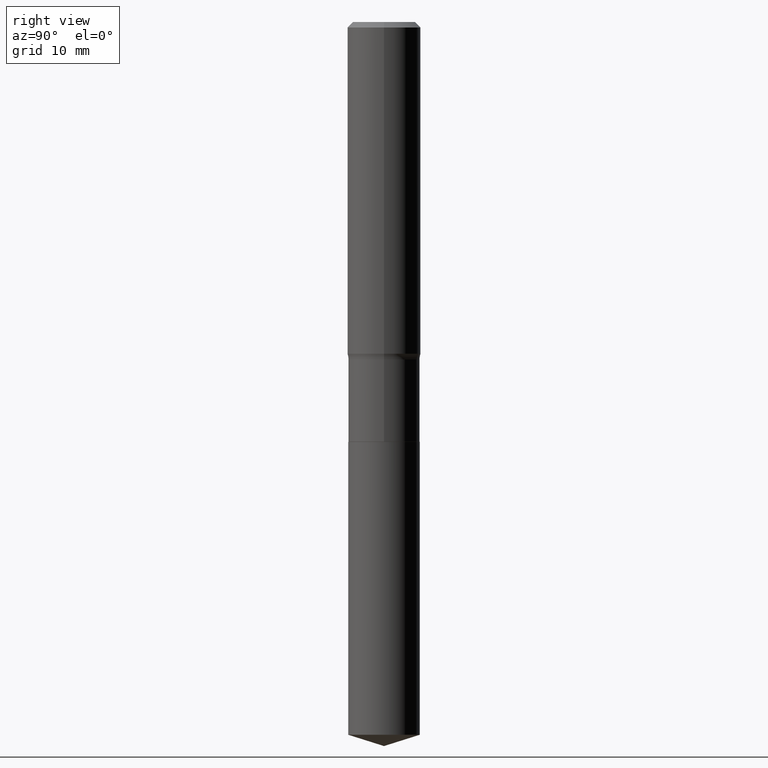
[diagram: clean part render]
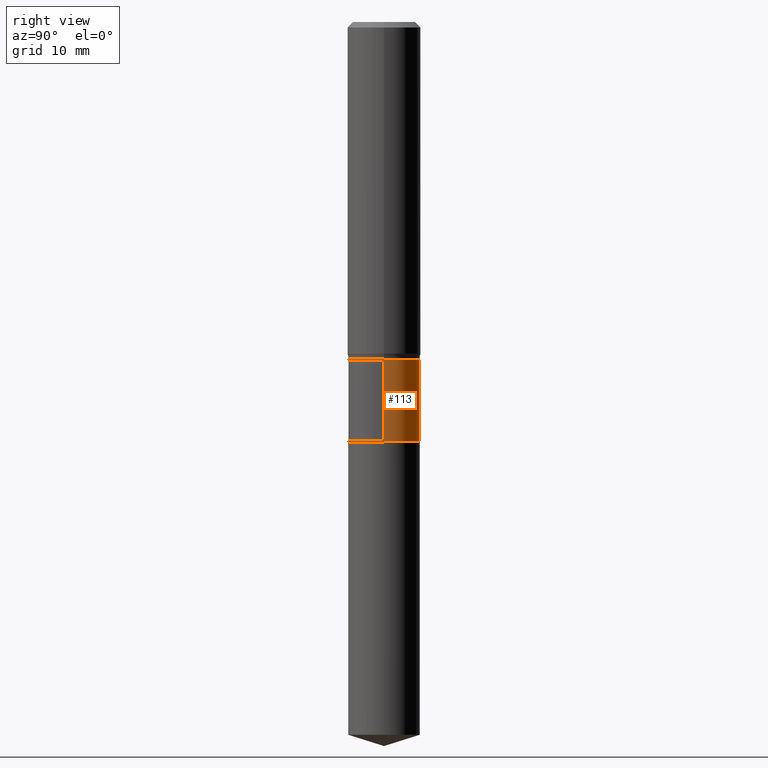
[diagram: same view with one face highlighted and labeled with its STEP entity id]
A machine part, right view. The second image highlights one B-rep face of the part: STEP entity #113.
In plain terms, the highlighted cylindrical surface (edge-blend (fillet) strip) has radius 3.9002 mm, axis along (-0, 0, 1).
Its self-contained STEP definition (entity closure, byte-faithful):
#10 = DIRECTION ( 'NONE',  ( 1.000000000000000000, -6.982962677686269077E-15, 0.000000000000000000 ) ) ;
#18 = EDGE_CURVE ( 'NONE', #383, #460, #448, .T. ) ;
#66 = VERTEX_POINT ( 'NONE', #290 ) ;
#71 = LINE ( 'NONE', #365, #364 ) ;
#73 = DIRECTION ( 'NONE',  ( 1.000000000000000000, -6.982962677686263555E-15, 0.000000000000000000 ) ) ;
#113 = ADVANCED_FACE ( 'NONE', ( #470 ), #118, .T. ) ;
#118 = CYLINDRICAL_SURFACE ( 'NONE', #461, 0.1535499999999999643 ) ;
#127 = CARTESIAN_POINT ( 'NONE',  ( -0.1535499999999999643, -4.586983156534031207E-15, -1.449899999999999967 ) ) ;
#131 = CARTESIAN_POINT ( 'NONE',  ( 0.000000000000000000, 0.000000000000000000, 0.000000000000000000 ) ) ;
#132 = EDGE_CURVE ( 'NONE', #66, #149, #211, .T. ) ;
#133 = AXIS2_PLACEMENT_3D ( 'NONE', #339, #304, #73 ) ;
#149 = VERTEX_POINT ( 'NONE', #324 ) ;
#156 = CARTESIAN_POINT ( 'NONE',  ( 4.408202070029327321E-29, -6.293744261398653946E-15, -1.802599999999999980 ) ) ;
#157 = AXIS2_PLACEMENT_3D ( 'NONE', #156, #215, #10 ) ;
#169 = CARTESIAN_POINT ( 'NONE',  ( 0.1535499999999999643, -6.134532712347401777E-15, -1.449899999999999967 ) ) ;
#183 = DIRECTION ( 'NONE',  ( -2.445468806185136877E-29, 3.491481338843145188E-15, 1.000000000000000000 ) ) ;
#209 = EDGE_CURVE ( 'NONE', #149, #460, #71, .T. ) ;
#211 = CIRCLE ( 'NONE', #157, 0.1535499999999999921 ) ;
#215 = DIRECTION ( 'NONE',  ( -2.445468806185136597E-29, 3.491481338843145583E-15, 1.000000000000000000 ) ) ;
#227 = LINE ( 'NONE', #484, #441 ) ;
#232 = DIRECTION ( 'NONE',  ( -2.445468806185136597E-29, 3.491481338843145583E-15, 1.000000000000000000 ) ) ;
#247 = EDGE_CURVE ( 'NONE', #66, #383, #227, .T. ) ;
#256 = ORIENTED_EDGE ( 'NONE', *, *, #132, .T. ) ;
#258 = ORIENTED_EDGE ( 'NONE', *, *, #18, .F. ) ;
#290 = CARTESIAN_POINT ( 'NONE',  ( 0.1535499999999999921, -7.365978180557380092E-15, -1.802599999999999980 ) ) ;
#304 = DIRECTION ( 'NONE',  ( -2.445468806185136597E-29, 3.491481338843145583E-15, 1.000000000000000000 ) ) ;
#324 = CARTESIAN_POINT ( 'NONE',  ( -0.1535500000000000198, -4.586983156534031207E-15, -1.802599999999999980 ) ) ;
#339 = CARTESIAN_POINT ( 'NONE',  ( 3.545685222087829505E-29, -5.062298793188676419E-15, -1.449899999999999967 ) ) ;
#364 = VECTOR ( 'NONE', #183, 39.37007874015748143 ) ;
#365 = CARTESIAN_POINT ( 'NONE',  ( -0.1535499999999999643, 1.091038370759633582E-15, -7.553024831086406471E-30 ) ) ;
#374 = DIRECTION ( 'NONE',  ( -2.445468806185136877E-29, 3.491481338843145188E-15, 1.000000000000000000 ) ) ;
#383 = VERTEX_POINT ( 'NONE', #169 ) ;
#393 = ORIENTED_EDGE ( 'NONE', *, *, #247, .F. ) ;
#441 = VECTOR ( 'NONE', #374, 39.37007874015748143 ) ;
#448 = CIRCLE ( 'NONE', #133, 0.1535499999999999643 ) ;
#459 = EDGE_LOOP ( 'NONE', ( #256, #487, #258, #393 ) ) ;
#460 = VERTEX_POINT ( 'NONE', #127 ) ;
#461 = AXIS2_PLACEMENT_3D ( 'NONE', #131, #232, #491 ) ;
#470 = FACE_OUTER_BOUND ( 'NONE', #459, .T. ) ;
#484 = CARTESIAN_POINT ( 'NONE',  ( 0.1535499999999999643, -1.072233919158726146E-15, 7.487369439234657779E-30 ) ) ;
#487 = ORIENTED_EDGE ( 'NONE', *, *, #209, .T. ) ;
#491 = DIRECTION ( 'NONE',  ( 1.000000000000000000, -6.982962677686267499E-15, 4.876176775795935793E-29 ) ) ;